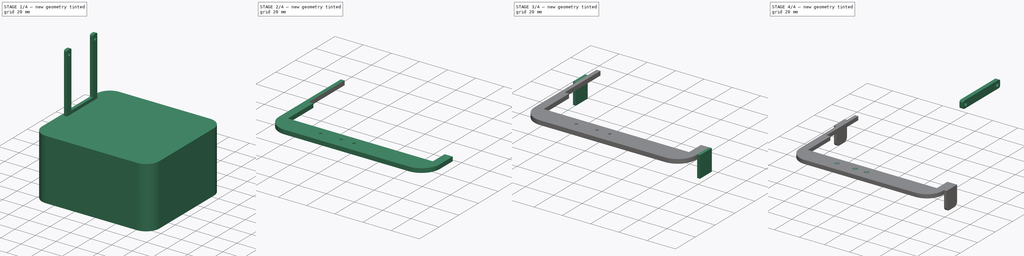
[diagram: build sequence overview — one tinted view per stage of 4, left to right]
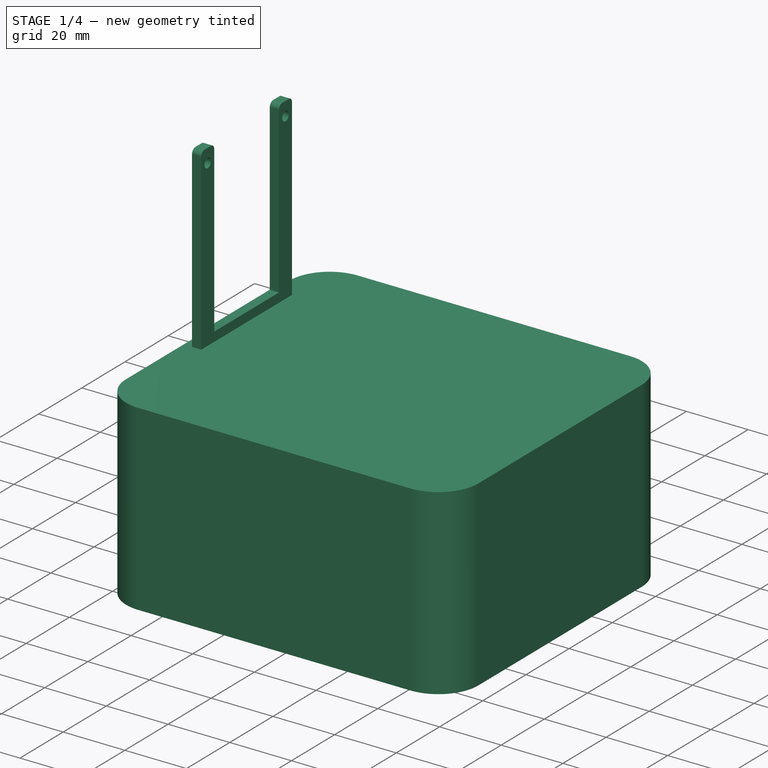
[diagram: stage 1 of 4 — iso view after this stage's code; geometry added in this stage tinted green]
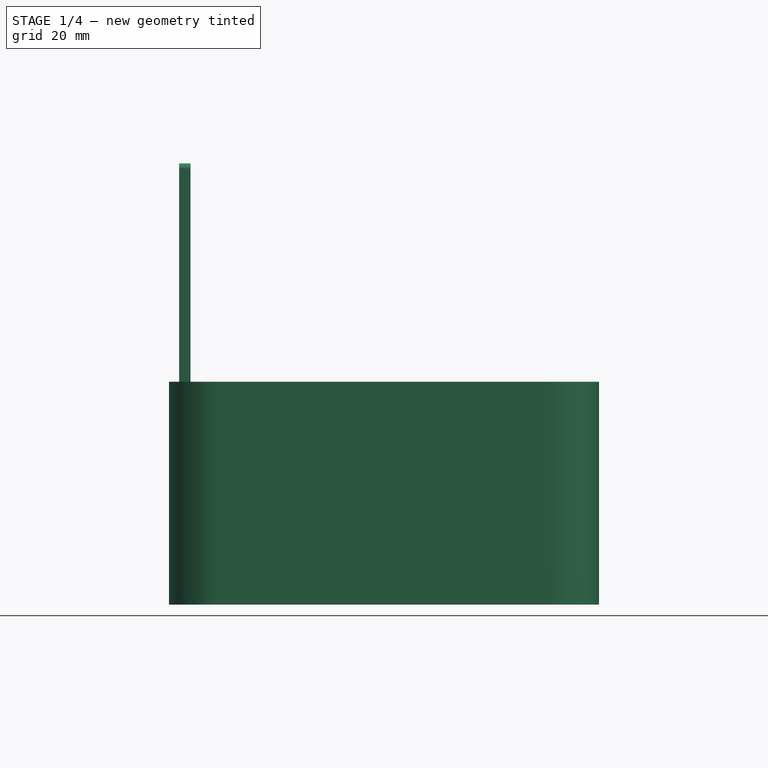
[diagram: stage 1 of 4 — front view after this stage's code; geometry added in this stage tinted green]
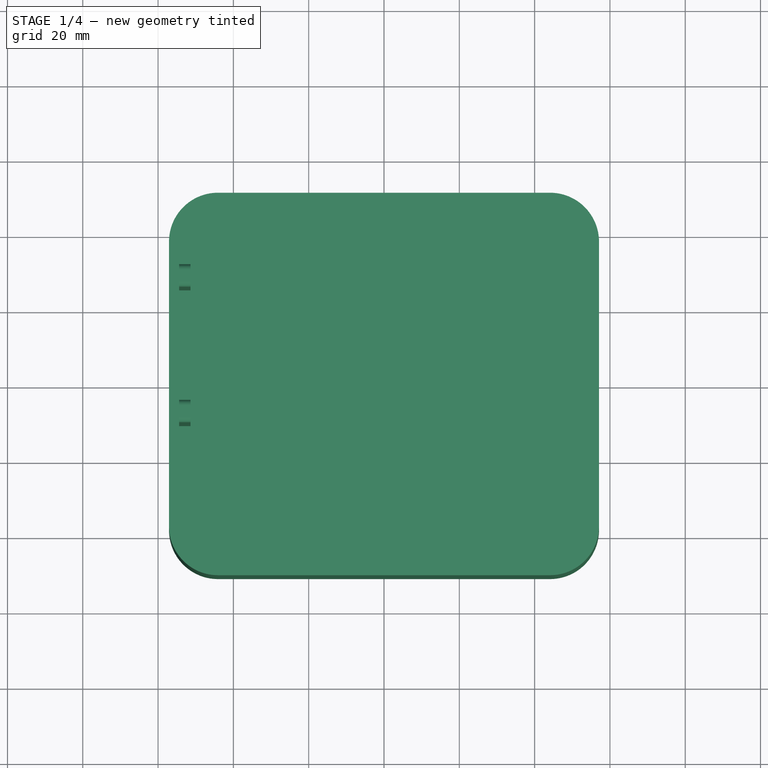
[diagram: stage 1 of 4 — top view after this stage's code; geometry added in this stage tinted green]
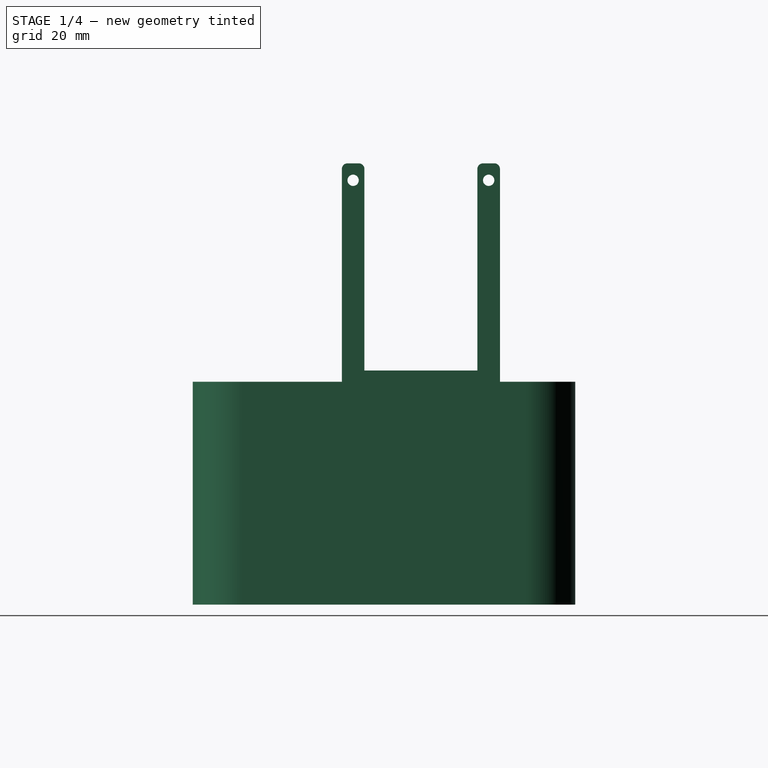
[diagram: stage 1 of 4 — right view after this stage's code; geometry added in this stage tinted green]
FCSTD DOCUMENT  (FreeCAD 0.19R24267 +148 (Git))
Label: fideco_mod
License: All rights reserved
LicenseURL: http://en.wikipedia.org/wiki/All_rights_reserved
objects: Sketcher::SketchObject×9, PartDesign::Pad×7, PartDesign::Fillet×4, PartDesign::Body×4, PartDesign::ShapeBinder×4, PartDesign::Pocket×2, Spreadsheet::Sheet×1, PartDesign::Plane×1, PartDesign::Chamfer×1
note: 46 computed .brp shape members not serialized (recipe doc carries the construction recipe); baked Part::Feature solids carry a one-line shape summary decoded from their .brp

FEATURE [Spreadsheet::Sheet] Spreadsheet  label="$params"
  cells = A2=port_distance; B2(port_distance)=36; D2=fideco_body_width; E2(fideco_body_width)=114; A3=port_mount_width; B3(port_mount_width)=6; D3=fideco_body_length; E3(fideco_body_length)=101.6; A4=port_mount_thickness; B4(port_mount_thickness)=3; D4=fideco_body_fillet; E4(fideco_body_fillet)=13; A5=port_mount_height; B5(port_mount_height)=58; D5=fideco_body_height; E5(fideco_body_height)=59.2; A6=port_bottom_thickness; B6(port_bottom_thickness)=3; D6=fideco_slot_buffer; E6(fideco_slot_buffer)=5.7; A7=port_hole_distance_vert; B7(port_hole_distance_vert)=53.5; D7=fideco_bay_length; E7(fideco_bay_length)=31.6; A8=port_hole_distance_hori; B8(port_hole_distance_hori)=2.5; D8=fideco_bay_distance; E8(fideco_bay_distance)=4.5; A9=port_hole_diam; B9(port_hole_diam)=3; D9=fideco_bay_ext; E9(fideco_bay_ext)=63; A10=port_mount_distance_back; B10(port_mount_distance_back)=20; D10=led_dist_front; E10(led_dist_front)=8; D11=led_power_left; E11(led_power_left)=33; A12=side_clip_width; B12(side_clip_width)=12; D12=led_d1_left; E12(led_d1_left)=47.6; A13=side_clip_offset; B13(side_clip_offset)=12; D13=led_d2_left; E13(led_d2_left)=56.6; A14=side_clip_thickness; B14(side_clip_thickness)=2; D14=led_diam; E14(led_diam)=2; A15=side_clip_fillet; B15(side_clip_fillet)=3; D16=bad_button_right_offset; E16(bad_button_right_offset)=29; D17=bad_button_front_offset; E17(bad_button_front_offset)=3.7; D18=bad_button_height; E18(bad_button_height)=8.300000000000001; D19=bad_button_width; E19(bad_button_width)=8.300000000000001; D20=bad_button_boundary; E20(bad_button_boundary)=1; D21=bad_button_raise; E21(bad_button_raise)=1
FEATURE [Sketcher::SketchObject] Sketch001  label="Fideco Body Sketch"
  FullyConstrained = true
  MapMode = 5
  Support = -> [XY_Plane001]
  expr: Constraints[7] = <<$params>>.fideco_body_length
  expr: Constraints[6] = <<$params>>.fideco_body_width
  sketch-geometry (4):
    g0: LineSegment StartX=-57.1 StartY=50.8 StartZ=0 EndX=57.1 EndY=50.8 EndZ=0
    g1: LineSegment StartX=57.1 StartY=50.8 StartZ=0 EndX=57.1 EndY=-50.8 EndZ=0
    g2: LineSegment StartX=57.1 StartY=-50.8 StartZ=0 EndX=-57.1 EndY=-50.8 EndZ=0
    g3: LineSegment StartX=-57.1 StartY=-50.8 StartZ=0 EndX=-57.1 EndY=50.8 EndZ=0
  constraints (10):
    c: Coincident(g0,g1)
    c: Coincident(g1,g2)
    c: Coincident(g2,g3)
    c: Coincident(g3,g0)
    c: Horizontal(g2)
    c: Vertical(g1)
    c: DistanceX(g0,g0) = 114.2
    c: DistanceY(g3,g3) = 101.6
    c: Symmetric(g0,g0,g-2)
    c: Symmetric(g0,g2,g-1)
FEATURE [PartDesign::Pad] Pad001  label="Fideco Body Pad"
  Direction = (1,1,1)
  Length = 59.2
  Length2 = 100
  Profile = -> Sketch001
  Type = 0
  expr: Length = <<$params>>.fideco_body_height
FEATURE [PartDesign::Fillet] Fillet001  label="Fideco Body Fillet"
  Base = -> Pad001 [Edge2,Edge5,Edge8,Edge1]
  BaseFeature = -> Pad001
  Radius = 13
  SupportTransform = false
  expr: Radius = <<$params>>.fideco_body_fillet
FEATURE [PartDesign::Plane] DatumPlane
  Length = 126.059
  MapMode = 5
  Placement = pos=(-57.1,0,0) rot=(0.57735,-0.57735,-0.57735;2.0944rad)
  ResizeMode = 0
  Support = -> [Pad001]
  Width = 171.659
FEATURE [Sketcher::SketchObject] Sketch  label="Drive Mount Body A Sketch"
  AttachmentOffset = pos=(0,0,-5.7) rot=(0,0,1;0rad)
  FullyConstrained = true
  MapMode = 5
  Placement = pos=(-51.4,0,0) rot=(0.57735,-0.57735,-0.57735;2.0944rad)
  Support = -> [DatumPlane]
  expr: Constraints[35] = <<$params>>.port_mount_distance_back
  expr: .AttachmentOffset.Base.z = -<<$params>>.fideco_slot_buffer
  expr: Constraints[17] = <<$params>>.port_distance
  expr: Constraints[22] = <<$params>>.port_hole_distance_vert
  expr: Constraints[27] = <<$params>>.port_mount_width / 2
  expr: Constraints[30] = <<$params>>.fideco_body_height
  expr: Constraints[21] = <<$params>>.port_bottom_thickness
  expr: Constraints[34] = <<$params>>.fideco_body_length / 2
  expr: Constraints[18] = <<$params>>.port_mount_width
  expr: Constraints[24] = <<$params>>.port_hole_diam
  expr: Constraints[20] = <<$params>>.port_mount_height
  expr: Constraints[23] = <<$params>>.port_mount_width / 2
  sketch-geometry (12):
    g0: LineSegment StartX=-30.8 StartY=117.2 StartZ=0 EndX=-30.8 EndY=59.2 EndZ=0
    g1: LineSegment StartX=-30.8 StartY=59.2 StartZ=0 EndX=11.2 EndY=59.2 EndZ=0
    g2: LineSegment StartX=11.2 StartY=59.2 StartZ=0 EndX=11.2 EndY=117.2 EndZ=0
    g3: LineSegment StartX=-30.8 StartY=117.2 StartZ=0 EndX=-24.8 EndY=117.2 EndZ=0
    g4: LineSegment StartX=-24.8 StartY=117.2 StartZ=0 EndX=-24.8 EndY=62.2 EndZ=0
    g5: LineSegment StartX=-24.8 StartY=62.2 StartZ=0 EndX=5.2 EndY=62.2 EndZ=0
    g6: LineSegment StartX=5.2 StartY=62.2 StartZ=0 EndX=5.2 EndY=117.2 EndZ=0
    g7: LineSegment StartX=5.2 StartY=117.2 StartZ=0 EndX=11.2 EndY=117.2 EndZ=0
    g8: LineSegment StartX=-24.8 StartY=117.2 StartZ=0 EndX=5.2 EndY=117.2 EndZ=0
    g9: Circle CenterX=-27.8 CenterY=112.7 CenterZ=0 NormalX=0 NormalY=0 NormalZ=1 AngleXU=0 Radius=1.5
    g10: Circle CenterX=8.2 CenterY=112.7 CenterZ=0 NormalX=0 NormalY=0 NormalZ=1 AngleXU=0 Radius=1.5
    g11: LineSegment StartX=-50.8 StartY=68.14 StartZ=0 EndX=-50.8 EndY=0 EndZ=0
  constraints (36):
    c: Coincident(g1,g0)
    c: Coincident(g2,g1)
    c: Vertical(g2)
    c: Coincident(g3,g0)
    c: Horizontal(g3)
    c: Coincident(g4,g3)
    c: Vertical(g4)
    c: Coincident(g5,g4)
    c: Horizontal(g5)
    c: Coincident(g6,g5)
    c: Vertical(g6)
    c: Coincident(g7,g6)
    c: Coincident(g7,g2)
    c: Horizontal(g7)
    c: Coincident(g8,g3)
    c: Coincident(g8,g6)
    c: Horizontal(g8)
    c: DistanceX(g0,g6) = 36
    c: DistanceX(g3,g3) = 6
    c: Equal(g7,g3)
    c: DistanceY(g0,g0) = 58
    c: DistanceY(g0,g4) = 3
    c: DistanceY(g0,g9) = 53.5
    c: DistanceX(g0,g9) = 3
    c: Diameter(g9) = 3
    c: Equal(g10,g9)
    c: Horizontal(g10,g9)
    c: DistanceX(g10,g2) = 3
    c: Horizontal(g1)
    c: Vertical(g0)
    c: DistanceY(g-1,g1) = 59.2
    c: Vertical(g11)
    c: PointOnObject(g11,g-1)
    c: DistanceY(g11,g11) = 68.14
    c: DistanceX(g11,g-1) = 50.8
    c: DistanceX(g11,g0) = 20
FEATURE [PartDesign::Pad] Pad  label="Drive Mount A Body"
  Direction = (1,1,1)
  Length = 3
  Length2 = 100
  Placement = pos=(-57.1,0,0) rot=(0.57735,-0.57735,-0.57735;2.0944rad)
  Profile = -> Sketch
  Type = 0
  expr: Length = <<$params>>.port_mount_thickness
FEATURE [PartDesign::Fillet] Fillet  label="Drive Mount Body A Fillet"
  Base = -> Pad [Edge1,Edge20,Edge11,Edge8]
  BaseFeature = -> Pad
  Placement = pos=(-57.1,0,0) rot=(0.57735,-0.57735,-0.57735;2.0944rad)
  Radius = 1.5
  SupportTransform = false
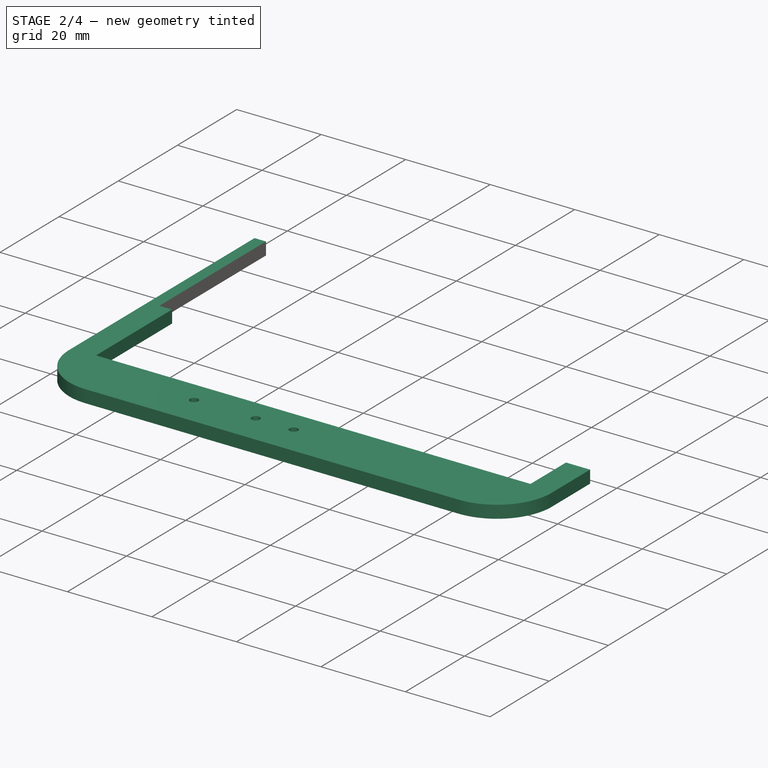
[diagram: stage 2 of 4 — iso view after this stage's code; geometry added in this stage tinted green]
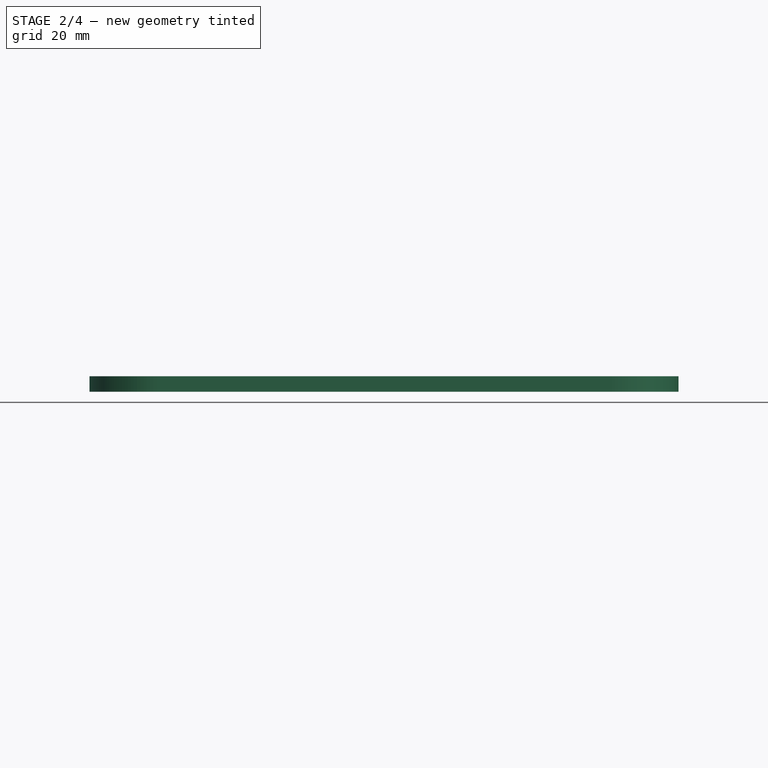
[diagram: stage 2 of 4 — front view after this stage's code; geometry added in this stage tinted green]
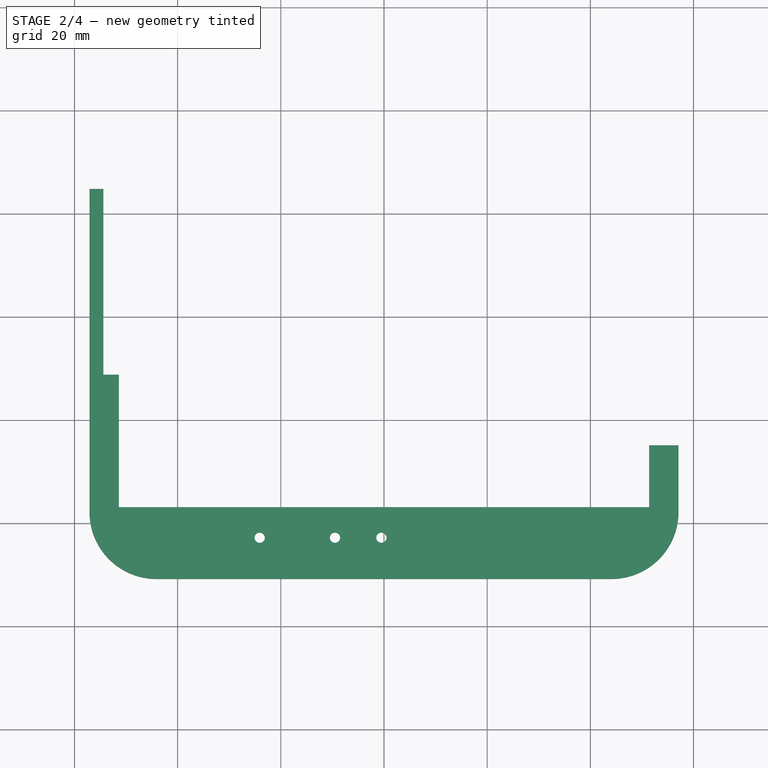
[diagram: stage 2 of 4 — top view after this stage's code; geometry added in this stage tinted green]
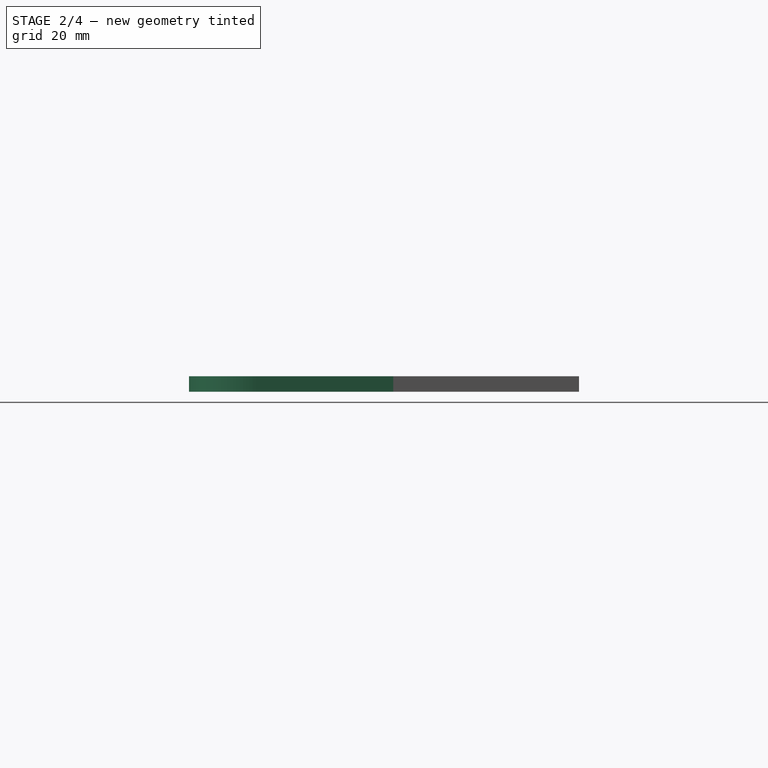
[diagram: stage 2 of 4 — right view after this stage's code; geometry added in this stage tinted green]
FEATURE [PartDesign::Body] Body  label="Drive Mount A"
  Group = -> [Sketch,Pad,Fillet]
  Origin = -> Origin
  Tip = -> Fillet
FEATURE [Sketcher::SketchObject] Sketch002  label="Fideco Ext Sketch"
  ExternalGeometry = -> [Sketch001]
  FullyConstrained = true
  MapMode = 5
  Placement = pos=(0,0,59.2) rot=(0,0,1;0rad)
  Support = -> [Pad001]
  expr: Constraints[35] = <<$params>>.port_mount_distance_back
  expr: Constraints[34] = <<$params>>.fideco_bay_distance
  expr: Constraints[32] = <<$params>>.fideco_bay_length
  expr: Constraints[28] = <<$params>>.fideco_slot_buffer
  sketch-geometry (12):
    g0: LineSegment StartX=-51.4 StartY=30.8 StartZ=0 EndX=51.4 EndY=30.8 EndZ=0
    g1: LineSegment StartX=51.4 StartY=30.8 StartZ=0 EndX=51.4 EndY=-0.8 EndZ=0
    g2: LineSegment StartX=51.4 StartY=-0.8 StartZ=0 EndX=-51.4 EndY=-0.8 EndZ=0
    g3: LineSegment StartX=-51.4 StartY=-0.8 StartZ=0 EndX=-51.4 EndY=30.8 EndZ=0
    g4: LineSegment StartX=-51.4 StartY=-5.3 StartZ=0 EndX=51.4 EndY=-5.3 EndZ=0
    g5: LineSegment StartX=51.4 StartY=-5.3 StartZ=0 EndX=51.4 EndY=-36.9 EndZ=0
    g6: LineSegment StartX=51.4 StartY=-36.9 StartZ=0 EndX=-51.4 EndY=-36.9 EndZ=0
    g7: LineSegment StartX=-51.4 StartY=-36.9 StartZ=0 EndX=-51.4 EndY=-5.3 EndZ=0
    g8: LineSegment StartX=51.4 StartY=30.8 StartZ=0 EndX=57.1 EndY=30.8 EndZ=0
    g9: LineSegment StartX=-51.4 StartY=30.8 StartZ=0 EndX=-57.1 EndY=30.8 EndZ=0
    g10: LineSegment StartX=51.4 StartY=-5.3 StartZ=0 EndX=57.1 EndY=-5.3 EndZ=0
    g11: LineSegment StartX=-51.4 StartY=-5.3 StartZ=0 EndX=-57.1 EndY=-5.3 EndZ=0
  constraints (36):
    c: Coincident(g0,g1)
    c: Coincident(g1,g2)
    c: Coincident(g2,g3)
    c: Coincident(g3,g0)
    c: Horizontal(g0)
    c: Horizontal(g2)
    c: Vertical(g1)
    c: Vertical(g3)
    c: Coincident(g4,g5)
    c: Coincident(g5,g6)
    c: Coincident(g6,g7)
    c: Coincident(g7,g4)
    c: Horizontal(g4)
    c: Horizontal(g6)
    c: Vertical(g5)
    c: Vertical(g7)
    c: Coincident(g8,g0)
    c: Horizontal(g8)
    c: Coincident(g9,g0)
    c: Horizontal(g9)
    c: Coincident(g10,g4)
    c: Horizontal(g10)
    c: Coincident(g11,g4)
    c: Horizontal(g11)
    c: PointOnObject(g8,g-4)
    c: PointOnObject(g10,g-4)
    c: PointOnObject(g11,g-3)
    c: PointOnObject(g9,g-3)
    c: DistanceX(g8,g8) = 5.7
    c: Equal(g8,g10)
    c: Equal(g10,g11)
    c: Equal(g11,g9)
    c: DistanceY(g1,g1) = 31.6
    c: Equal(g1,g5)
    c: DistanceY(g4,g1) = 4.5
    c: DistanceY(g0,g-3) = 20
FEATURE [PartDesign::Pad] Pad002  label="Fideco Drive Ext Pad"
  BaseFeature = -> Fillet001
  Direction = (1,1,1)
  Length = 63
  Length2 = 100
  Profile = -> Sketch002
  Type = 0
  expr: Length = <<$params>>.fideco_bay_ext
FEATURE [PartDesign::Body] Body002  label="Drive Mount B"
  Group = -> [ShapeBinder,Sketch003,Pad003,ShapeBinder001,Fillet002]
  Origin = -> Origin002
  Tip = -> Fillet002
FEATURE [PartDesign::ShapeBinder] ShapeBinder002
  Support = -> [Pad002]
  TraceSupport = false
FEATURE [PartDesign::ShapeBinder] ShapeBinder003
  Placement = pos=(-57.1,0,0) rot=(0.57735,-0.57735,-0.57735;2.0944rad)
  Support = -> [Fillet]
  TraceSupport = false
FEATURE [Sketcher::SketchObject] Sketch004  label="Body Cover Body Sketch"
  ExternalGeometry = -> [ShapeBinder002,ShapeBinder003]
  FullyConstrained = true
  MapMode = 5
  Placement = pos=(0,0,59.2) rot=(0,0,1;0rad)
  Support = -> [ShapeBinder002]
  expr: Constraints[25] = <<$params>>.port_mount_width
  sketch-geometry (13):
    g0: LineSegment StartX=-54.4 StartY=-11.2 StartZ=0 EndX=-51.4 EndY=-11.2 EndZ=0
    g1: LineSegment StartX=-51.4 StartY=-11.2 StartZ=0 EndX=-51.4 EndY=-36.9 EndZ=0
    g2: LineSegment StartX=-57.1 StartY=24.8 StartZ=0 EndX=-57.1 EndY=-37.8 EndZ=0
    g3: ArcOfCircle CenterX=-44.1 CenterY=-37.8 CenterZ=0 NormalX=0 NormalY=0 NormalZ=1 AngleXU=0 Radius=13 StartAngle=3.14159 EndAngle=4.71239
    g4: LineSegment StartX=-44.1 StartY=-50.8 StartZ=0 EndX=44.1 EndY=-50.8 EndZ=0
    g5: LineSegment StartX=-51.4 StartY=-36.9 StartZ=0 EndX=51.4 EndY=-36.9 EndZ=0
    g6: ArcOfCircle CenterX=44.1 CenterY=-37.8 CenterZ=0 NormalX=0 NormalY=0 NormalZ=1 AngleXU=0 Radius=13 StartAngle=4.71239 EndAngle=6.28319
    g7: LineSegment StartX=57.1 StartY=-37.8 StartZ=0 EndX=57.1 EndY=-24.9 EndZ=0
    g8: LineSegment StartX=57.1 StartY=-24.9 StartZ=0 EndX=51.4 EndY=-24.9 EndZ=0
    g9: LineSegment StartX=51.4 StartY=-24.9 StartZ=0 EndX=51.4 EndY=-36.9 EndZ=0
    g10: LineSegment StartX=-54.4 StartY=30.8 StartZ=0 EndX=-54.4 EndY=24.8 EndZ=0
    g11: LineSegment StartX=-54.4 StartY=-11.2 StartZ=0 EndX=-54.4 EndY=24.8 EndZ=0
    g12: LineSegment StartX=-54.4 StartY=24.8 StartZ=0 EndX=-57.1 EndY=24.8 EndZ=0
  constraints (32):
    c: Coincident(g0,g-7)
    c: Coincident(g1,g0)
    c: Coincident(g1,g-10)
    c: Coincident(g2,g-8)
    c: Coincident(g3,g-8)
    c: Coincident(g3,g2)
    c: Coincident(g3,g-8)
    c: Coincident(g4,g3)
    c: Coincident(g4,g-9)
    c: Coincident(g5,g1)
    c: Coincident(g5,g-11)
    c: Coincident(g6,g-9)
    c: Coincident(g6,g4)
    c: Coincident(g6,g-9)
    c: Coincident(g7,g6)
    c: PointOnObject(g7,g-5)
    c: Coincident(g8,g7)
    c: Horizontal(g8)
    c: Coincident(g9,g8)
    c: Coincident(g9,g5)
    c: Vertical(g9)
    c: DistanceY(g9,g9) = 12
    c: Vertical(g2)
    c: Coincident(g10,g-12)
    c: PointOnObject(g10,g-12)
    c: DistanceY(g10,g10) = 6
    c: Coincident(g11,g0)
    c: Coincident(g11,g10)
    c: Coincident(g12,g11)
    c: Coincident(g12,g2)
    c: Horizontal(g12)
    c: Coincident(g0,g-12)
FEATURE [PartDesign::Pad] Pad004  label="Body Cover Pad"
  Direction = (1,1,1)
  Length = 3
  Length2 = 100
  Profile = -> Sketch004
  Type = 0
  expr: Length = <<$params>>.port_bottom_thickness
FEATURE [Sketcher::SketchObject] Sketch005  label="Led Cut Sketch"
  ExternalGeometry = -> [Pad004]
  FullyConstrained = true
  MapMode = 5
  Placement = pos=(0,0,62.2) rot=(0,0,1;0rad)
  Support = -> [Pad004]
  expr: Constraints[17] = <<$params>>.led_d2_left
  expr: Constraints[16] = <<$params>>.led_d1_left
  expr: Constraints[15] = <<$params>>.led_power_left
  expr: Constraints[12] = <<$params>>.led_dist_front
  expr: Constraints[0] = <<$params>>.led_diam
  sketch-geometry (6):
    g0: Circle CenterX=-24.1 CenterY=-42.8 CenterZ=0 NormalX=0 NormalY=0 NormalZ=1 AngleXU=0 Radius=1
    g1: Circle CenterX=-9.5 CenterY=-42.8 CenterZ=0 NormalX=0 NormalY=0 NormalZ=1 AngleXU=0 Radius=1
    g2: Circle CenterX=-0.5 CenterY=-42.8 CenterZ=0 NormalX=0 NormalY=0 NormalZ=1 AngleXU=0 Radius=1
    g3: LineSegment StartX=-24.1 StartY=-42.8 StartZ=0 EndX=-24.1 EndY=-50.8 EndZ=0
    g4: LineSegment StartX=-9.5 StartY=-42.8 StartZ=0 EndX=-9.5 EndY=-50.8 EndZ=0
    g5: LineSegment StartX=-0.5 StartY=-42.8 StartZ=0 EndX=-0.5 EndY=-50.8 EndZ=0
  constraints (18):
    c: Diameter(g0) = 2
    c: Equal(g0,g1)
    c: Equal(g1,g2)
    c: Coincident(g3,g0)
    c: PointOnObject(g3,g-4)
    c: Vertical(g3)
    c: Coincident(g4,g1)
    c: PointOnObject(g4,g-4)
    c: Coincident(g5,g2)
    c: PointOnObject(g5,g-4)
    c: Vertical(g5)
    c: Vertical(g4)
    c: DistanceY(g3,g3) = 8
    c: Equal(g3,g4)
    c: Equal(g4,g5)
    c: DistanceX(g-3,g0) = 33
    c: DistanceX(g-3,g1) = 47.6
    c: DistanceX(g-3,g2) = 56.6
FEATURE [PartDesign::Pocket] Pocket  label="Led Cutouts"
  BaseFeature = -> Pad004
  Length = 5
  Length2 = 100
  Profile = -> Sketch005
  Type = 2
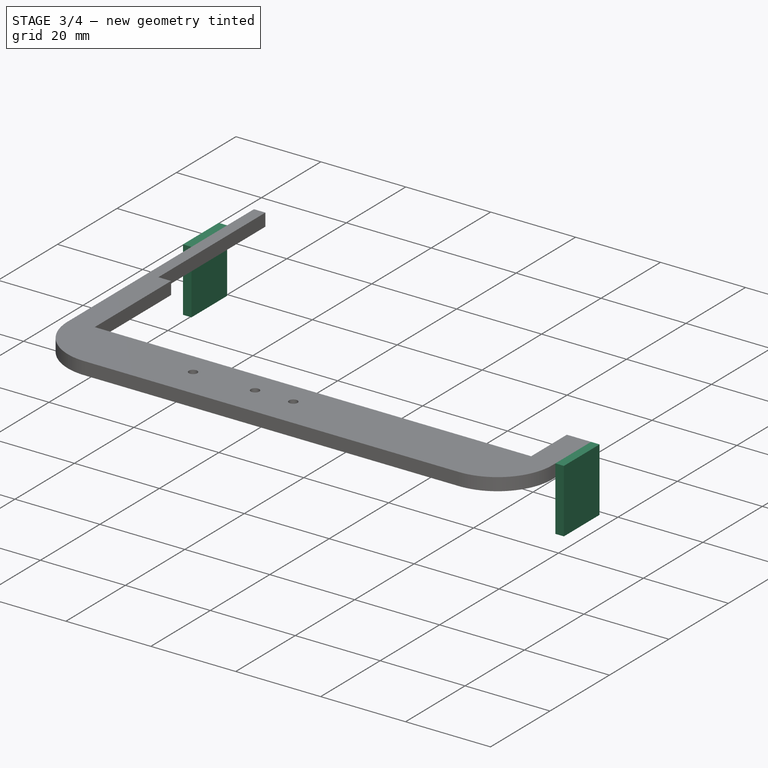
[diagram: stage 3 of 4 — iso view after this stage's code; geometry added in this stage tinted green]
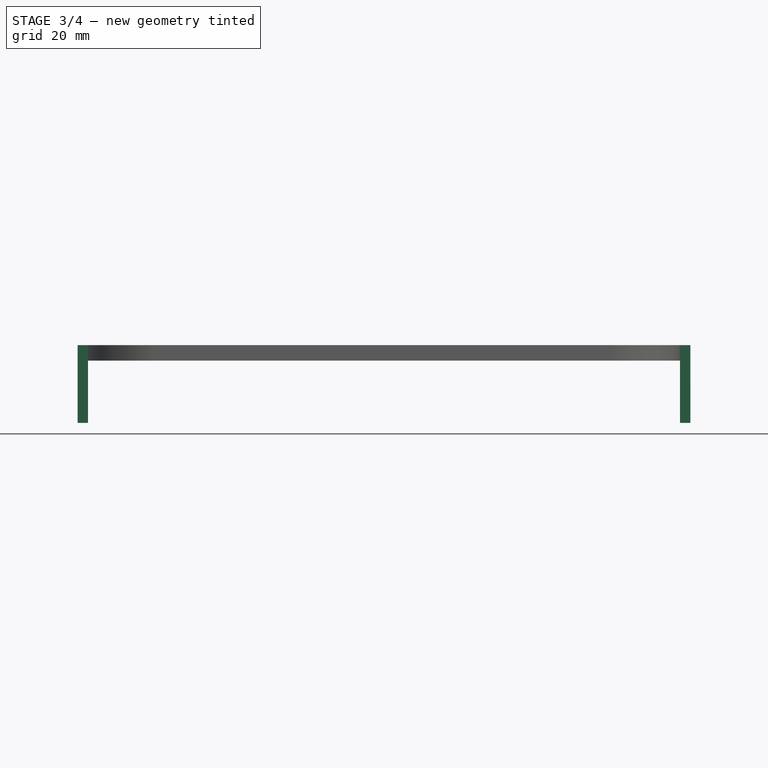
[diagram: stage 3 of 4 — front view after this stage's code; geometry added in this stage tinted green]
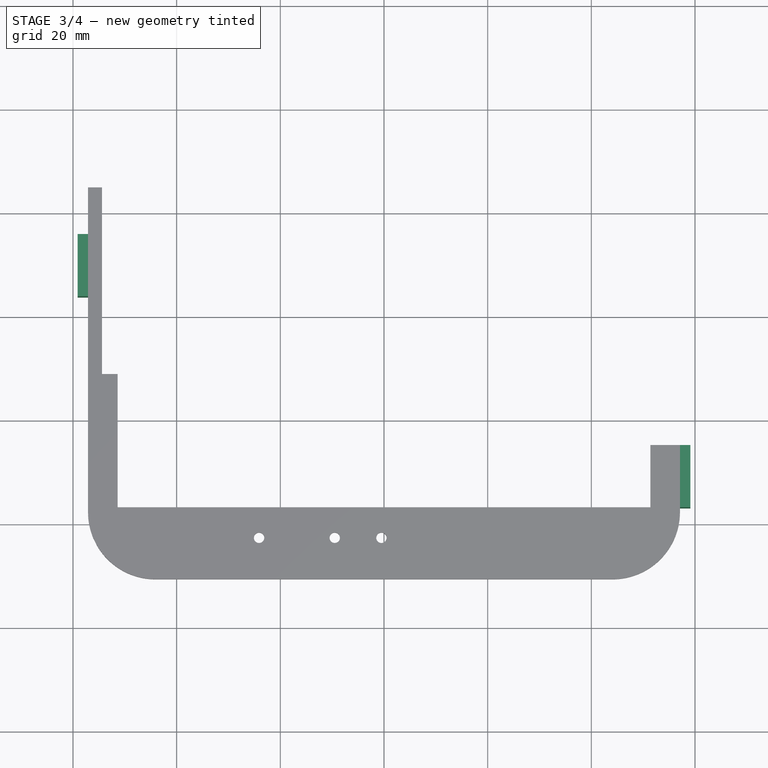
[diagram: stage 3 of 4 — top view after this stage's code; geometry added in this stage tinted green]
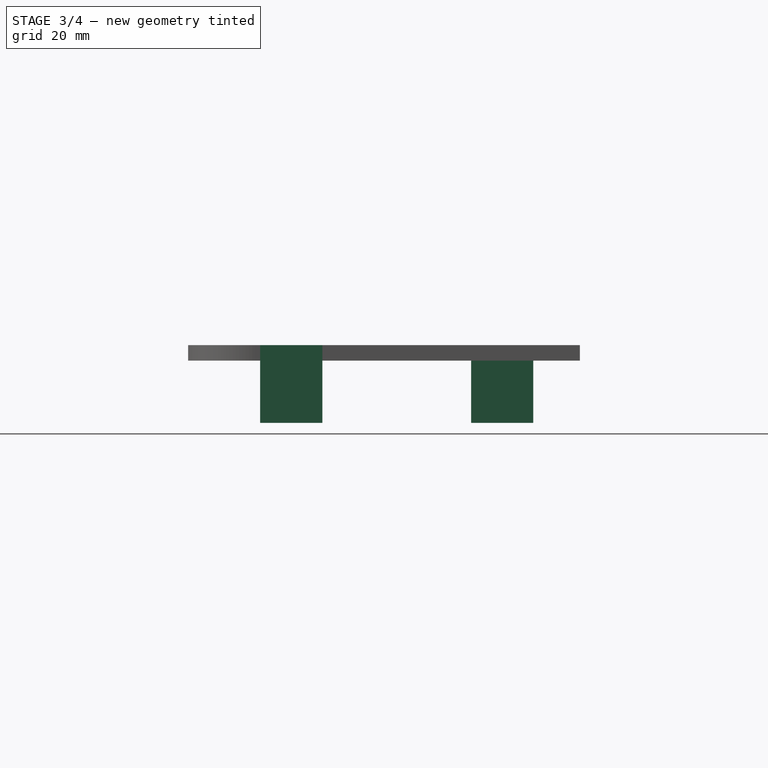
[diagram: stage 3 of 4 — right view after this stage's code; geometry added in this stage tinted green]
FEATURE [Sketcher::SketchObject] Sketch006  label="Side Clip Sketch"
  ExternalGeometry = -> [ShapeBinder003,Pocket]
  FullyConstrained = true
  MapMode = 5
  Placement = pos=(-57.1,0,0) rot=(0.57735,-0.57735,-0.57735;2.0944rad)
  Support = -> [Pocket]
  expr: Constraints[15] = <<$params>>.side_clip_offset
  expr: Constraints[14] = <<$params>>.side_clip_width
  sketch-geometry (17):
    g0: LineSegment StartX=5.2 StartY=59.2 StartZ=0 EndX=5.2 EndY=62.2 EndZ=0
    g1: LineSegment StartX=5.2 StartY=62.2 StartZ=0 EndX=-24.8 EndY=62.2 EndZ=0
    g2: LineSegment StartX=-24.8 StartY=62.2 StartZ=0 EndX=-24.8 EndY=59.2 EndZ=0
    g3: LineSegment StartX=-15.8 StartY=59.2 StartZ=0 EndX=-3.8 EndY=59.2 EndZ=0
    g4: LineSegment StartX=-3.8 StartY=59.2 StartZ=0 EndX=-3.8 EndY=47.2 EndZ=0
    g5: LineSegment StartX=-3.8 StartY=47.2 StartZ=0 EndX=-15.8 EndY=47.2 EndZ=0
    g6: LineSegment StartX=-15.8 StartY=47.2 StartZ=0 EndX=-15.8 EndY=59.2 EndZ=0
    g7: LineSegment StartX=-24.8 StartY=59.2 StartZ=0 EndX=-15.8 EndY=59.2 EndZ=0
    g8: LineSegment StartX=-3.8 StartY=59.2 StartZ=0 EndX=5.2 EndY=59.2 EndZ=0
    g9: LineSegment StartX=-15.8 StartY=59.2 StartZ=0 EndX=-3.8 EndY=59.2 EndZ=0
    g10: LineSegment StartX=-3.8 StartY=59.2 StartZ=0 EndX=-3.8 EndY=62.2 EndZ=0
    g11: LineSegment StartX=-3.8 StartY=62.2 StartZ=0 EndX=-15.8 EndY=62.2 EndZ=0
    g12: LineSegment StartX=-15.8 StartY=62.2 StartZ=0 EndX=-15.8 EndY=59.2 EndZ=0
    g13: LineSegment StartX=-15.8 StartY=62.2 StartZ=0 EndX=-3.8 EndY=62.2 EndZ=0
    g14: LineSegment StartX=-3.8 StartY=62.2 StartZ=0 EndX=-3.8 EndY=47.2 EndZ=0
    g15: LineSegment StartX=-3.8 StartY=47.2 StartZ=0 EndX=-15.8 EndY=47.2 EndZ=0
    g16: LineSegment StartX=-15.8 StartY=47.2 StartZ=0 EndX=-15.8 EndY=62.2 EndZ=0
  constraints (41):
    c: Coincident(g0,g1)
    c: Coincident(g1,g2)
    c: Vertical(g0)
    c: Coincident(g0,g-3)
    c: Coincident(g3,g4)
    c: Coincident(g4,g5)
    c: Coincident(g5,g6)
    c: Coincident(g6,g3)
    c: Horizontal(g3)
    c: Horizontal(g5)
    c: Vertical(g4)
    c: Vertical(g6)
    c: Coincident(g7,g3)
    c: Coincident(g8,g3)
    c: DistanceX(g5,g5) = 12
    c: DistanceY(g6,g6) = 12
    c: Coincident(g9,g10)
    c: Coincident(g10,g11)
    c: Coincident(g11,g12)
    c: Coincident(g12,g9)
    c: Horizontal(g11)
    c: Vertical(g10)
    c: Vertical(g12)
    c: Coincident(g9,g3)
    c: PointOnObject(g10,g1)
    c: Coincident(g3,g9)
    c: Equal(g8,g7)
    c: Coincident(g0,g8)
    c: Coincident(g7,g2)
    c: Coincident(g1,g-5)
    c: Horizontal(g8)
    c: Horizontal(g7)
    c: Coincident(g2,g-5)
    c: Coincident(g11,g13)
    c: Coincident(g13,g10)
    c: Coincident(g13,g14)
    c: Coincident(g14,g4)
    c: Coincident(g14,g15)
    c: Coincident(g15,g5)
    c: Coincident(g15,g16)
    c: Coincident(g16,g13)
FEATURE [PartDesign::Pad] Pad005  label="Side Clip Pad"
  BaseFeature = -> Pocket
  Direction = (1,1,1)
  Length = 2
  Length2 = 100
  Profile = -> Sketch006
  Type = 0
  expr: Length = <<$params>>.side_clip_thickness
FEATURE [Sketcher::SketchObject] Sketch008  label="Side Clip 2 Sketch"
  ExternalGeometry = -> [Sketch004,Pad005]
  FullyConstrained = true
  MapMode = 5
  Placement = pos=(57.1,-3.15e-14,0) rot=(0.57735,0.57735,0.57735;2.0944rad)
  Support = -> [Pad005]
  expr: Constraints[20] = <<$params>>.side_clip_width
  expr: Constraints[19] = <<$params>>.side_clip_offset
  sketch-geometry (12):
    g0: LineSegment StartX=-24.9 StartY=59.2 StartZ=0 EndX=-36.9 EndY=59.2 EndZ=0
    g1: LineSegment StartX=-36.9 StartY=59.2 StartZ=0 EndX=-36.9 EndY=47.2 EndZ=0
    g2: LineSegment StartX=-36.9 StartY=47.2 StartZ=0 EndX=-24.9 EndY=47.2 EndZ=0
    g3: LineSegment StartX=-24.9 StartY=47.2 StartZ=0 EndX=-24.9 EndY=59.2 EndZ=0
    g4: LineSegment StartX=-36.9 StartY=59.2 StartZ=0 EndX=-24.9 EndY=59.2 EndZ=0
    g5: LineSegment StartX=-24.9 StartY=59.2 StartZ=0 EndX=-24.9 EndY=62.2 EndZ=0
    g6: LineSegment StartX=-24.9 StartY=62.2 StartZ=0 EndX=-36.9 EndY=62.2 EndZ=0
    g7: LineSegment StartX=-36.9 StartY=62.2 StartZ=0 EndX=-36.9 EndY=59.2 EndZ=0
    g8: LineSegment StartX=-36.9 StartY=62.2 StartZ=0 EndX=-24.9 EndY=62.2 EndZ=0
    g9: LineSegment StartX=-24.9 StartY=47.2 StartZ=0 EndX=-24.9 EndY=62.2 EndZ=0
    g10: LineSegment StartX=-24.9 StartY=47.2 StartZ=0 EndX=-36.9 EndY=47.2 EndZ=0
    g11: LineSegment StartX=-36.9 StartY=47.2 StartZ=0 EndX=-36.9 EndY=62.2 EndZ=0
  constraints (29):
    c: Coincident(g0,g1)
    c: Coincident(g1,g2)
    c: Coincident(g2,g3)
    c: Coincident(g3,g0)
    c: Horizontal(g0)
    c: Horizontal(g2)
    c: Vertical(g1)
    c: Vertical(g3)
    c: Coincident(g0,g-3)
    c: Coincident(g4,g5)
    c: Coincident(g5,g6)
    c: Coincident(g6,g7)
    c: Coincident(g7,g4)
    c: Horizontal(g4)
    c: Horizontal(g6)
    c: Vertical(g5)
    c: Vertical(g7)
    c: Coincident(g4,g0)
    c: Coincident(g5,g-4)
    c: DistanceY(g1,g1) = 12
    c: DistanceX(g2,g2) = 12
    c: Coincident(g8,g6)
    c: Coincident(g8,g5)
    c: Coincident(g9,g2)
    c: Coincident(g9,g8)
    c: Coincident(g10,g9)
    c: Coincident(g10,g1)
    c: Coincident(g11,g10)
    c: Coincident(g11,g8)
FEATURE [PartDesign::Pad] Pad006  label="Side Clip 2 Pad"
  BaseFeature = -> Pad005
  Direction = (1,1,1)
  Length = 2
  Length2 = 100
  Profile = -> Sketch008
  Type = 0
  expr: Length = <<$params>>.side_clip_thickness
FEATURE [Sketcher::SketchObject] Sketch009  label="Bad Button Boundary Cutout Sketch"
  ExternalGeometry = -> [Sketch004]
  FullyConstrained = true
  MapMode = 5
  Placement = pos=(0,0,59.2) rot=(1,0,0;3.14159rad)
  Support = -> [Pad006]
  expr: Constraints[32] = <<$params>>.bad_button_boundary
  expr: Constraints[11] = <<$params>>.bad_button_front_offset
  expr: Constraints[10] = <<$params>>.bad_button_height
  expr: Constraints[9] = <<$params>>.bad_button_width
  expr: Constraints[8] = <<$params>>.bad_button_right_offset
  sketch-geometry (12):
    g0: LineSegment StartX=19.8 StartY=38.8 StartZ=0 EndX=28.1 EndY=38.8 EndZ=0
    g1: LineSegment StartX=28.1 StartY=38.8 StartZ=0 EndX=28.1 EndY=47.1 EndZ=0
    g2: LineSegment StartX=28.1 StartY=47.1 StartZ=0 EndX=19.8 EndY=47.1 EndZ=0
    g3: LineSegment StartX=19.8 StartY=47.1 StartZ=0 EndX=19.8 EndY=38.8 EndZ=0
    g4: LineSegment StartX=18.8 StartY=48.1 StartZ=0 EndX=29.1 EndY=48.1 EndZ=0
    g5: LineSegment StartX=29.1 StartY=48.1 StartZ=0 EndX=29.1 EndY=37.8 EndZ=0
    g6: LineSegment StartX=29.1 StartY=37.8 StartZ=0 EndX=18.8 EndY=37.8 EndZ=0
    g7: LineSegment StartX=18.8 StartY=37.8 StartZ=0 EndX=18.8 EndY=48.1 EndZ=0
    g8: LineSegment StartX=19.8 StartY=47.1 StartZ=0 EndX=18.8 EndY=47.1 EndZ=0
    g9: LineSegment StartX=19.8 StartY=47.1 StartZ=0 EndX=19.8 EndY=48.1 EndZ=0
    g10: LineSegment StartX=28.1 StartY=38.8 StartZ=0 EndX=28.1 EndY=37.8 EndZ=0
    g11: LineSegment StartX=28.1 StartY=38.8 StartZ=0 EndX=29.1 EndY=38.8 EndZ=0
  constraints (36):
    c: Coincident(g0,g1)
    c: Coincident(g1,g2)
    c: Coincident(g2,g3)
    c: Coincident(g3,g0)
    c: Horizontal(g0)
    c: Horizontal(g2)
    c: Vertical(g1)
    c: Vertical(g3)
    c: DistanceX(g0,g-3) = 29
    c: DistanceX(g0,g0) = 8.3
    c: DistanceY(g1,g1) = 8.3
    c: DistanceY(g1,g-4) = 3.7
    c: Coincident(g4,g5)
    c: Coincident(g5,g6)
    c: Coincident(g6,g7)
    c: Coincident(g7,g4)
    c: Horizontal(g4)
    c: Horizontal(g6)
    c: Vertical(g5)
    c: Vertical(g7)
    c: Coincident(g8,g2)
    c: PointOnObject(g8,g7)
    c: Horizontal(g8)
    c: Coincident(g9,g2)
    c: PointOnObject(g9,g4)
    c: Vertical(g9)
    c: Coincident(g10,g0)
    c: PointOnObject(g10,g6)
    c: Vertical(g10)
    c: Coincident(g11,g0)
    c: PointOnObject(g11,g5)
    c: Horizontal(g11)
    c: DistanceX(g11,g11) = 1
    c: Equal(g10,g11)
    c: Equal(g11,g8)
    c: Equal(g8,g9)
FEATURE [PartDesign::Pocket] Pocket001  label="Bad Button Boundary Cutout"
  BaseFeature = -> Pad006
  Length = 1
  Length2 = 100
  Profile = -> Sketch009
  Type = 0
  expr: Length = <<$params>>.bad_button_raise
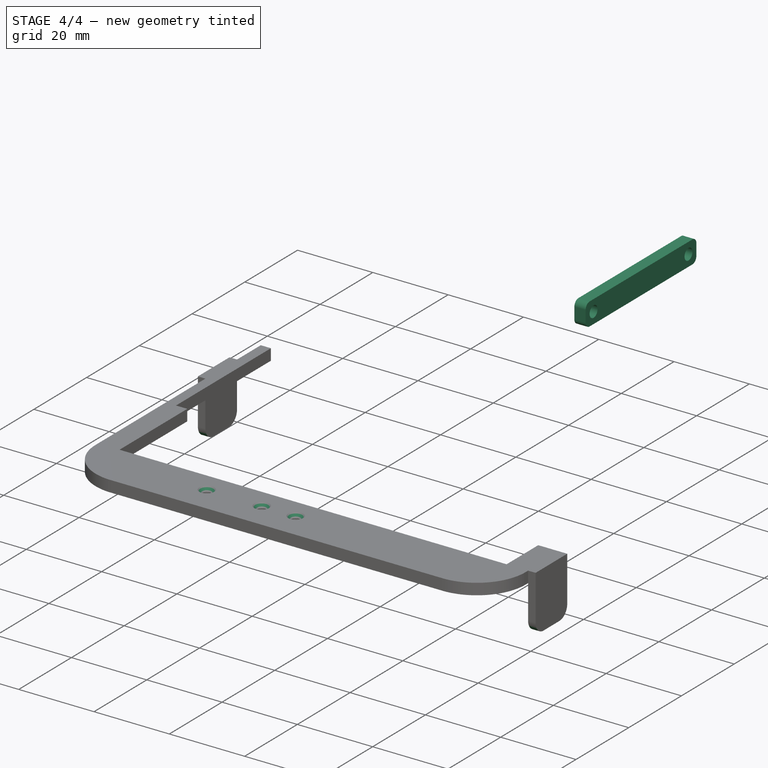
[diagram: stage 4 of 4 — iso view after this stage's code; geometry added in this stage tinted green]
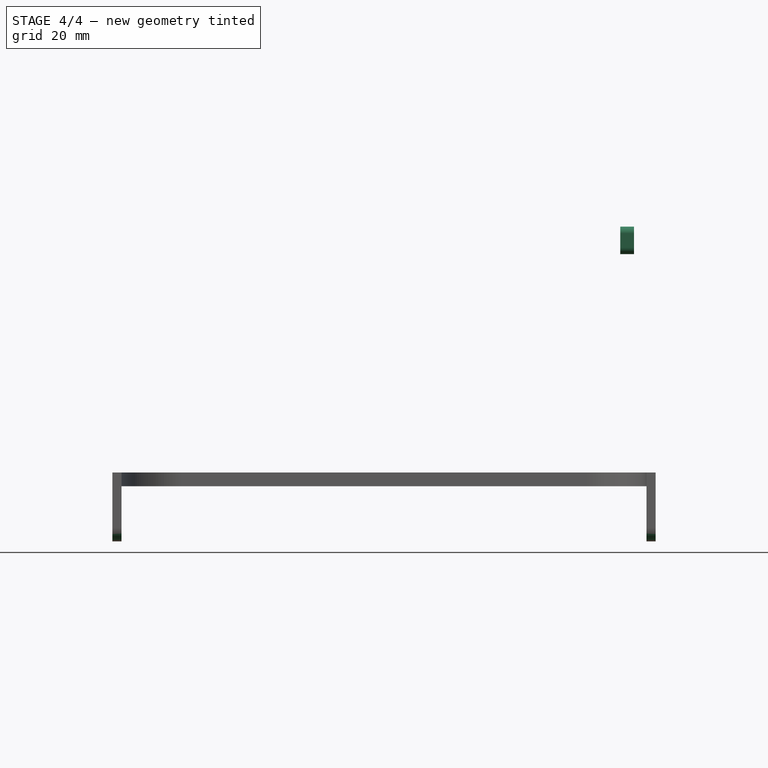
[diagram: stage 4 of 4 — front view after this stage's code; geometry added in this stage tinted green]
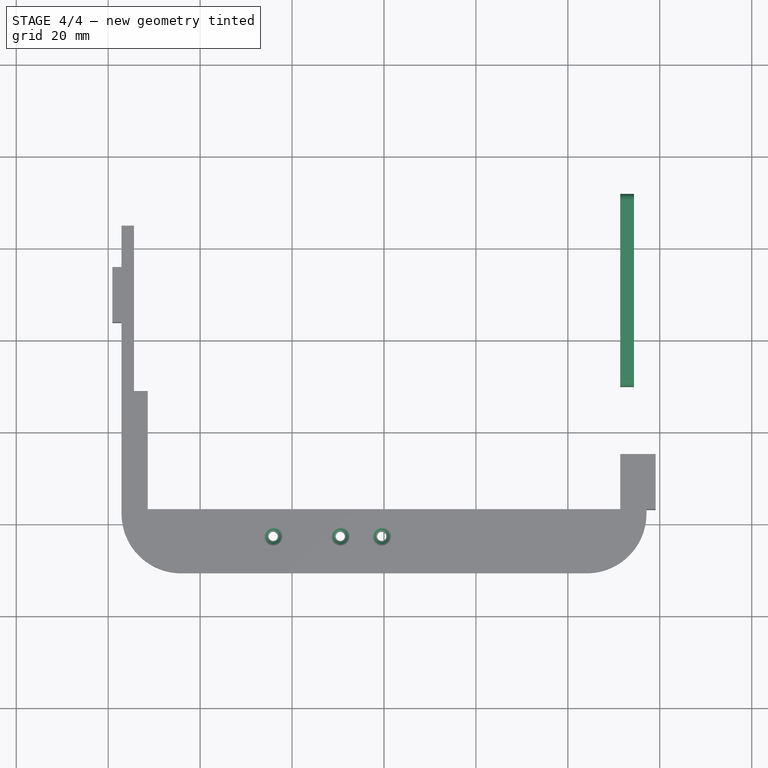
[diagram: stage 4 of 4 — top view after this stage's code; geometry added in this stage tinted green]
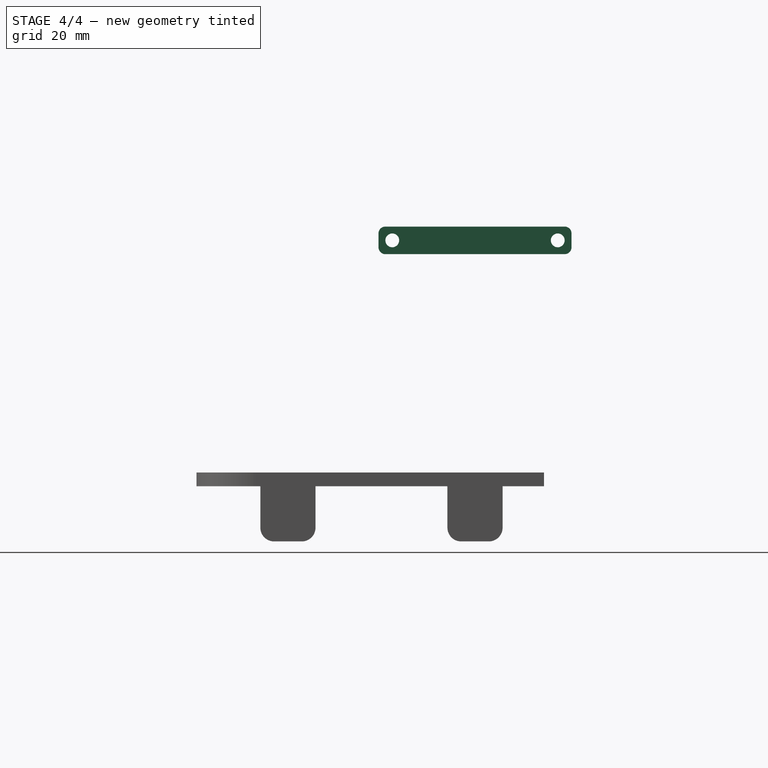
[diagram: stage 4 of 4 — right view after this stage's code; geometry added in this stage tinted green]
FEATURE [PartDesign::Body] Body001  label="Fideco Body"
  Group = -> [Sketch001,Pad001,Fillet001,DatumPlane,Sketch002,Pad002]
  Origin = -> Origin001
  Tip = -> Pad002
FEATURE [PartDesign::ShapeBinder] ShapeBinder
  Placement = pos=(-51.4,0,0) rot=(0.57735,-0.57735,-0.57735;2.0944rad)
  Support = -> [Sketch]
  TraceSupport = false
FEATURE [PartDesign::ShapeBinder] ShapeBinder001
  Support = -> [Pad002]
  TraceSupport = false
FEATURE [Sketcher::SketchObject] Sketch003  label="Drive Mount B Body Sketch"
  ExternalGeometry = -> [ShapeBinder]
  FullyConstrained = true
  MapMode = 5
  Placement = pos=(51.4,0,0) rot=(0.57735,0.57735,0.57735;2.0944rad)
  Support = -> [ShapeBinder001]
  sketch-geometry (9):
    g0: Circle CenterX=27.8 CenterY=112.7 CenterZ=0 NormalX=0 NormalY=0 NormalZ=1 AngleXU=0 Radius=1.5
    g1: Circle CenterX=-8.2 CenterY=112.7 CenterZ=0 NormalX=0 NormalY=0 NormalZ=1 AngleXU=0 Radius=1.5
    g2: LineSegment StartX=30.8 StartY=115.7 StartZ=0 EndX=-11.2 EndY=115.7 EndZ=0
    g3: LineSegment StartX=-11.2 StartY=115.7 StartZ=0 EndX=-11.2 EndY=109.7 EndZ=0
    g4: LineSegment StartX=-11.2 StartY=109.7 StartZ=0 EndX=30.8 EndY=109.7 EndZ=0
    g5: LineSegment StartX=30.8 StartY=109.7 StartZ=0 EndX=30.8 EndY=115.7 EndZ=0
    g6: LineSegment StartX=27.8 StartY=112.7 StartZ=0 EndX=30.8 EndY=112.7 EndZ=0
    g7: LineSegment StartX=27.8 StartY=112.7 StartZ=0 EndX=27.8 EndY=115.7 EndZ=0
    g8: LineSegment StartX=27.8 StartY=112.7 StartZ=0 EndX=27.8 EndY=109.7 EndZ=0
  constraints (25):
    c: Coincident(g1,g-3)
    c: Coincident(g2,g3)
    c: Coincident(g3,g4)
    c: Coincident(g4,g5)
    c: Coincident(g5,g2)
    c: Horizontal(g2)
    c: Horizontal(g4)
    c: Vertical(g3)
    c: Vertical(g5)
    c: PointOnObject(g2,g-4)
    c: PointOnObject(g3,g-8)
    c: Coincident(g6,g0)
    c: PointOnObject(g6,g5)
    c: Horizontal(g6)
    c: Coincident(g7,g0)
    c: PointOnObject(g7,g2)
    c: Vertical(g7)
    c: Equal(g0,g-5)
    c: Equal(g7,g6)
    c: Equal(g1,g-3)
    c: PointOnObject(g8,g4)
    c: Vertical(g8)
    c: Coincident(g8,g0)
    c: Equal(g6,g8)
    c: Coincident(g0,g-5)
FEATURE [PartDesign::Pad] Pad003
  Direction = (1,1,1)
  Length = 3
  Length2 = 100
  Profile = -> Sketch003
  Type = 0
  expr: Length = <<$params>>.port_mount_thickness
FEATURE [PartDesign::Fillet] Fillet002  label="Drive Mount Body B Fillet"
  Base = -> Pad003 [Edge2,Edge5,Edge8,Edge1]
  BaseFeature = -> Pad003
  Radius = 1.5
  SupportTransform = false
FEATURE [PartDesign::Chamfer] Chamfer  label="Led Chamfer"
  Angle = 45
  Base = -> Pocket001 [Edge42,Edge44,Edge43]
  BaseFeature = -> Pocket001
  ChamferType = 0
  FlipDirection = false
  Size = 1
  Size2 = 1
  SupportTransform = false
FEATURE [PartDesign::Fillet] Fillet003  label="Side Clip fillets"
  Base = -> Chamfer [Edge76,Edge79,Edge69,Edge72]
  BaseFeature = -> Chamfer
  Radius = 3
  SupportTransform = false
  expr: Radius = <<$params>>.side_clip_fillet
FEATURE [PartDesign::Body] Body003  label="Body Cover"
  Group = -> [ShapeBinder002,ShapeBinder003,Sketch004,Pad004,Sketch005,Pocket,Sketch006,Pad005,Sketch008,Pad006,Sketch009,Pocket001,Chamfer,Fillet003]
  Origin = -> Origin003
  Tip = -> Fillet003
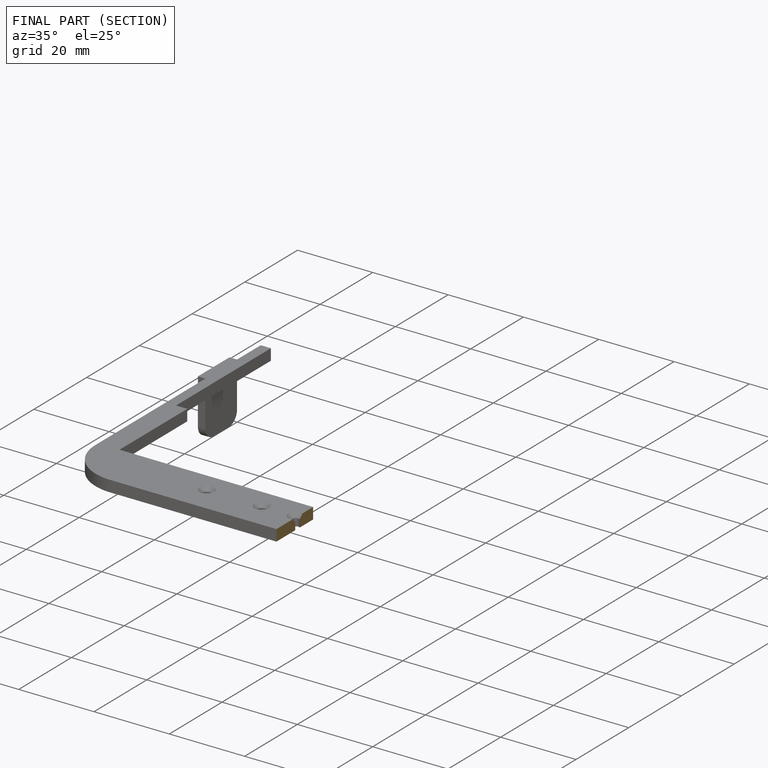
[diagram: finished part — half-section view (interior)]
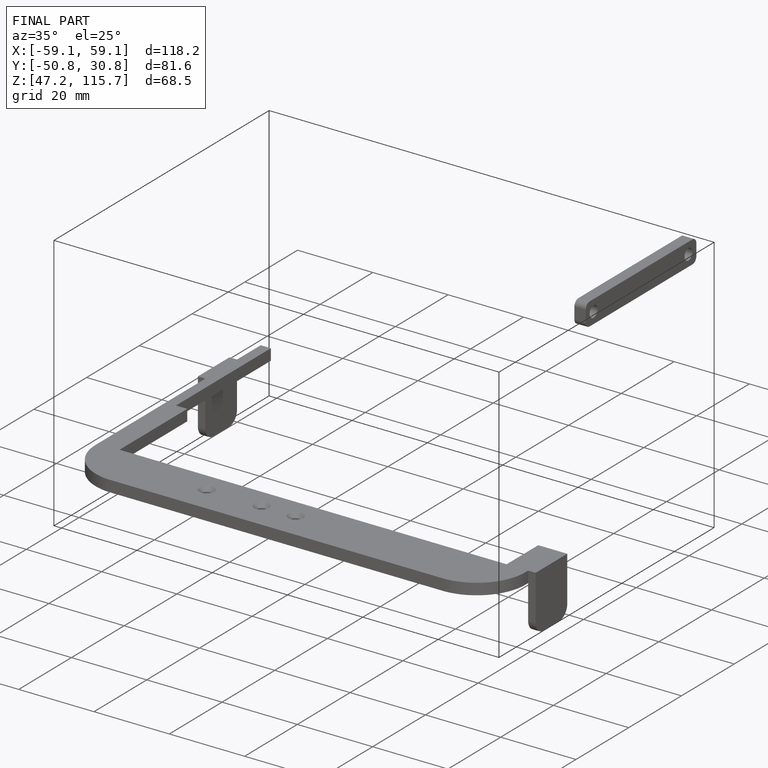
[diagram: finished part — iso view with bounding-box wireframe]
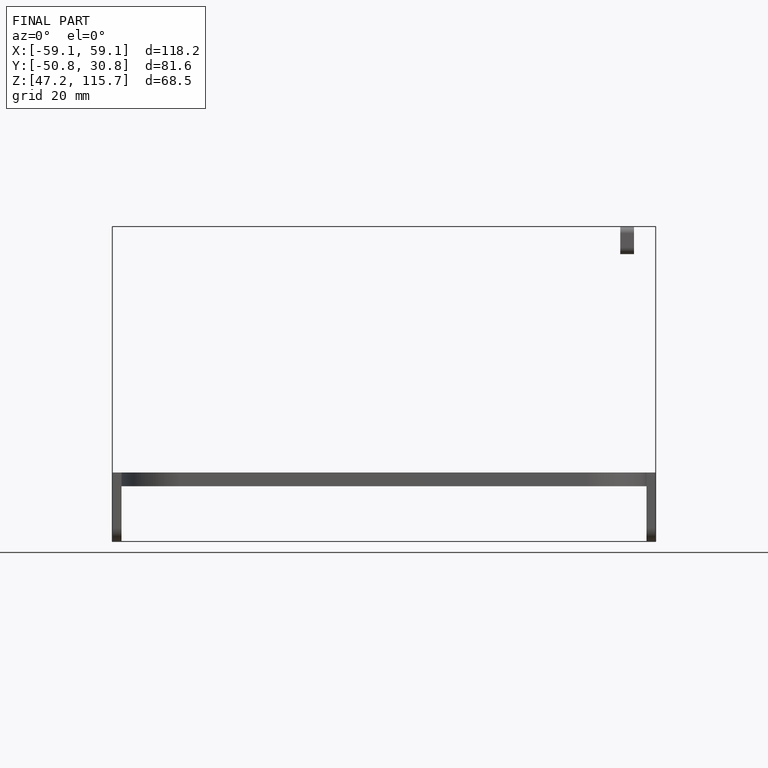
[diagram: finished part — front view with bounding-box wireframe]
